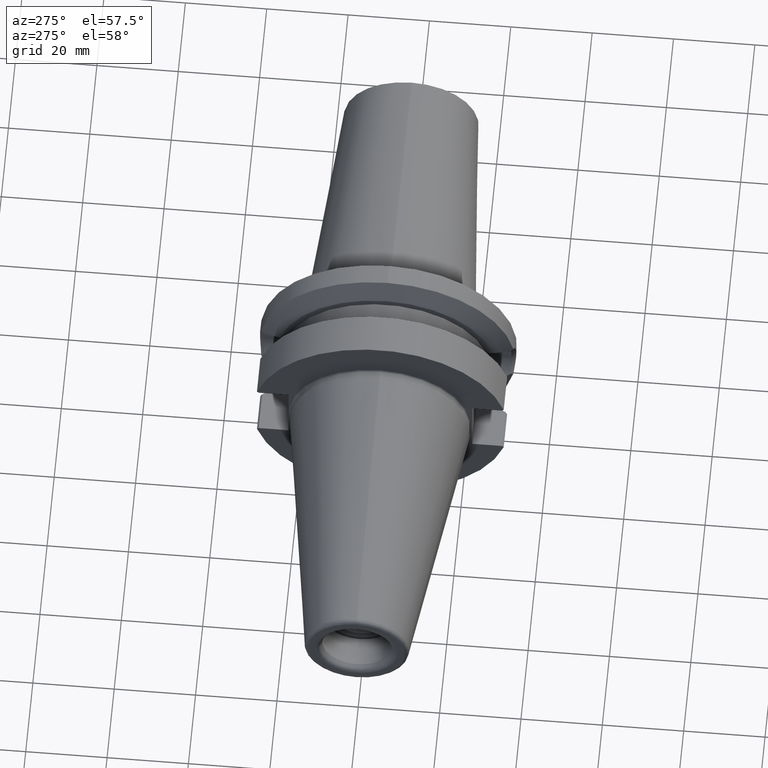
[diagram: clean part render]
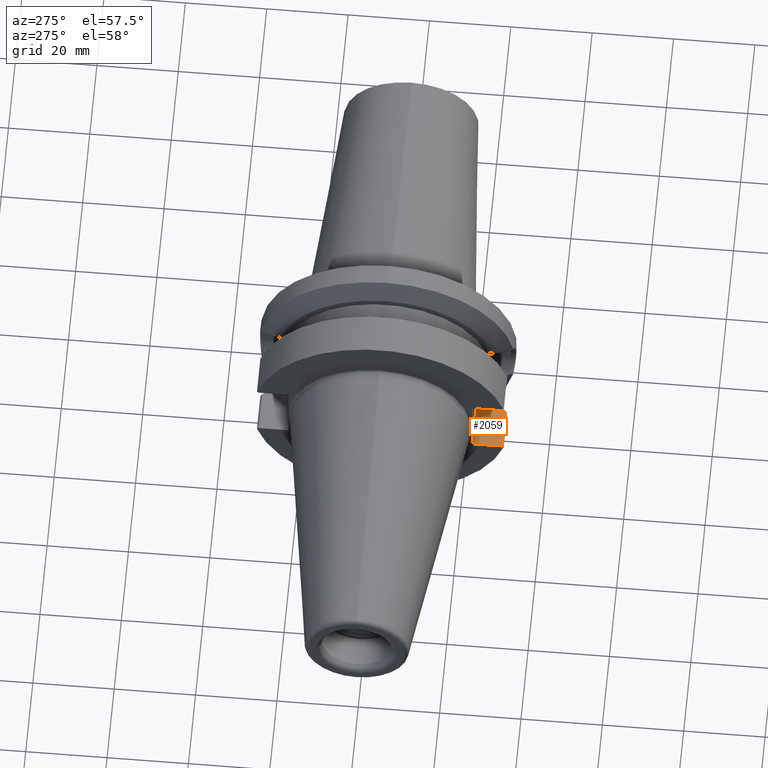
[diagram: same view with one face highlighted and labeled with its STEP entity id]
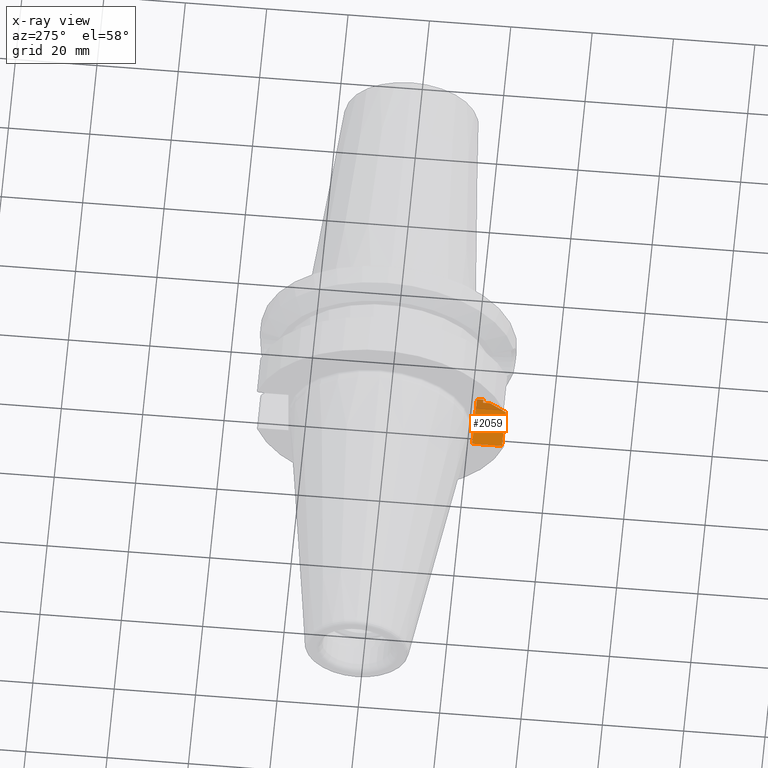
[diagram: x-ray of the same camera — body ghosted, the highlighted face saturated]
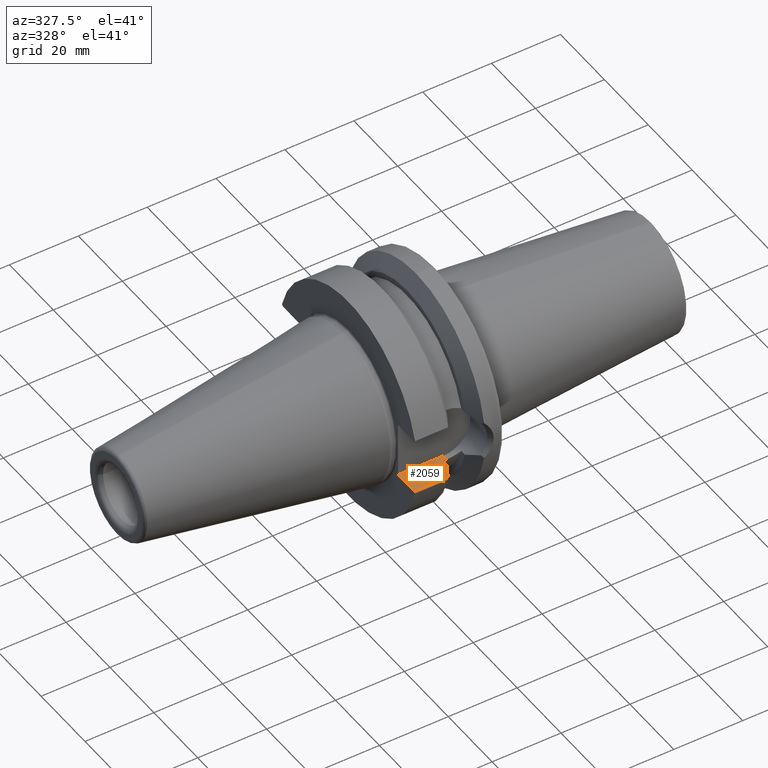
[diagram: same view with one face highlighted and labeled with its STEP entity id]
A machine part, auxiliary view. The second image highlights one B-rep face of the part: STEP entity #2059.
The next image is the same camera in x-ray: the body ghosted, the highlighted face saturated — about 13% of this face is hidden behind the body in this view.
A second angle (auxiliary view) of the same face is appended — the face is thin or edge-on in the first view.
In plain terms, the highlighted planar face has unit normal (0, 0, 1).
Its self-contained STEP definition (entity closure, byte-faithful):
#577=DIRECTION('',(-1.335587900749E-14,-1.E0,0.E0));
#578=VECTOR('',#577,1.596022400386E0);
#579=CARTESIAN_POINT('',(1.495E1,-2.26E1,-8.05E0));
#580=LINE('',#579,#578);
#606=DIRECTION('',(-1.E0,0.E0,0.E0));
#607=VECTOR('',#606,8.5E-1);
#608=CARTESIAN_POINT('',(1.495E1,-2.419602240039E1,-8.05E0));
#609=LINE('',#608,#607);
#738=DIRECTION('',(1.E0,0.E0,0.E0));
#739=VECTOR('',#738,9.878093461053E0);
#740=CARTESIAN_POINT('',(2.E0,-2.99E1,-8.05E0));
#741=LINE('',#740,#739);
#779=CARTESIAN_POINT('',(1.41E1,-2.589378524176E1,-8.05E0));
#780=CARTESIAN_POINT('',(1.386450341249E1,-2.632093406585E1,-8.05E0));
#781=CARTESIAN_POINT('',(1.338588596161E1,-2.718719807101E1,-8.05E0));
#782=CARTESIAN_POINT('',(1.264535505638E1,-2.852228716965E1,-8.05E0));
#783=CARTESIAN_POINT('',(1.213636940407E1,-2.943672353446E1,-8.05E0));
#784=CARTESIAN_POINT('',(1.187809346105E1,-2.99E1,-8.05E0));
#825=DIRECTION('',(-1.E0,0.E0,0.E0));
#826=VECTOR('',#825,1.295E1);
#827=CARTESIAN_POINT('',(1.495E1,-2.26E1,-8.05E0));
#828=LINE('',#827,#826);
#847=DIRECTION('',(0.E0,1.E0,0.E0));
#848=VECTOR('',#847,7.3E0);
#849=CARTESIAN_POINT('',(2.E0,-2.99E1,-8.05E0));
#850=LINE('',#849,#848);
#937=DIRECTION('',(0.E0,1.E0,0.E0));
#938=VECTOR('',#937,1.697762841377E0);
#939=CARTESIAN_POINT('',(1.41E1,-2.589378524176E1,-8.05E0));
#940=LINE('',#939,#938);
#1131=CARTESIAN_POINT('',(2.E0,-2.26E1,-8.05E0));
#1133=VERTEX_POINT('',#1131);
#1136=CARTESIAN_POINT('',(2.E0,-2.99E1,-8.05E0));
#1137=VERTEX_POINT('',#1136);
#1140=VERTEX_POINT('',#779);
#1141=VERTEX_POINT('',#784);
#1144=CARTESIAN_POINT('',(1.41E1,-2.419602240039E1,-8.05E0));
#1145=VERTEX_POINT('',#1144);
#1157=CARTESIAN_POINT('',(1.495E1,-2.26E1,-8.05E0));
#1158=CARTESIAN_POINT('',(1.495E1,-2.419602240039E1,-8.05E0));
#1159=VERTEX_POINT('',#1157);
#1160=VERTEX_POINT('',#1158);
#2039=CARTESIAN_POINT('',(2.3E1,-2.26E1,-8.05E0));
#2040=DIRECTION('',(0.E0,0.E0,1.E0));
#2041=DIRECTION('',(-1.E0,0.E0,0.E0));
#2042=AXIS2_PLACEMENT_3D('',#2039,#2040,#2041);
#2043=PLANE('',#2042);
#2044=ORIENTED_EDGE('',*,*,#2019,.T.);
#2046=ORIENTED_EDGE('',*,*,#2045,.T.);
#2048=ORIENTED_EDGE('',*,*,#2047,.F.);
#2050=ORIENTED_EDGE('',*,*,#2049,.T.);
#2052=ORIENTED_EDGE('',*,*,#2051,.F.);
#2054=ORIENTED_EDGE('',*,*,#2053,.T.);
#2056=ORIENTED_EDGE('',*,*,#2055,.F.);
#2057=EDGE_LOOP('',(#2044,#2046,#2048,#2050,#2052,#2054,#2056));
#2058=FACE_OUTER_BOUND('',#2057,.F.);
#2059=ADVANCED_FACE('',(#2058),#2043,.T.);
#785=B_SPLINE_CURVE_WITH_KNOTS('',3,(#779,#780,#781,#782,#783,#784),
.UNSPECIFIED.,.F.,.F.,(4,1,1,4),(0.E0,3.333333333333E-1,6.666666666667E-1,1.E0),
.UNSPECIFIED.);
#2019=EDGE_CURVE('',#1159,#1160,#580,.T.);
#2045=EDGE_CURVE('',#1160,#1145,#609,.T.);
#2047=EDGE_CURVE('',#1140,#1145,#940,.T.);
#2049=EDGE_CURVE('',#1140,#1141,#785,.T.);
#2051=EDGE_CURVE('',#1137,#1141,#741,.T.);
#2053=EDGE_CURVE('',#1137,#1133,#850,.T.);
#2055=EDGE_CURVE('',#1159,#1133,#828,.T.);